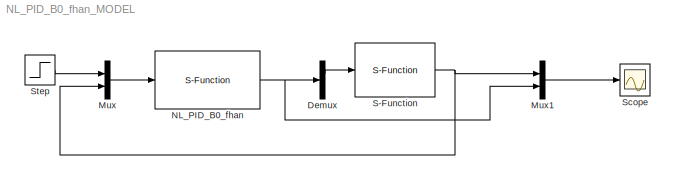
MODEL NL_PID_B0_fhan_MODEL
KIND model
BLOCK [Demux] Demux
  DisplayOption = bar
  Outputs = 2
  Ports = [1, 2]
  SID = 10
BLOCK [Mux] Mux
  DisplayOption = bar
  Inputs = 2
  Ports = [2, 1]
  SID = 5
BLOCK [Mux] Mux1
  DisplayOption = bar
  Inputs = 2
  Ports = [2, 1]
  SID = 9
BLOCK [S-Function] NL_PID_B0_fhan
  EnableBusSupport = off
  FunctionName = NL_PID_B0_fhan
  MaskCallbackString = |||||||
  MaskEnableString = on,on,on,on,on,on,on,on
  MaskIconFrame = on
  MaskIconOpaque = on
  MaskIconRotate = none
  MaskIconUnits = autoscale
  MaskPortRotate = default
  MaskPromptString = r0=|h0|r1=|h1=|h=|Bet0=|r2=|h2=
  MaskStyleString = edit,edit,edit,edit,edit,edit,edit,edit
  MaskToolTipString = on,on,on,on,on,on,on,on
  MaskTunableValueString = on,on,on,on,on,on,on,on
  MaskValueString = 0.5|0.01|30|0.01|0.01|500|20|0.08
  MaskVariables = r0=@1;h0=@2;r1=@3;h1=@4;h=@5;Bet0=@6;r2=@7;h2=@8;
  MaskVisibilityString = on,on,on,on,on,on,on,on
  Parameters = r0,h0,r1,h1,h,Bet0,r2,h2
  Ports = [1, 1]
  SID = 24
BLOCK [S-Function] S-Function
  EnableBusSupport = off
  FunctionName = Plant1
  Ports = [1, 1]
  SID = 2
BLOCK [Scope] Scope
  DataFormat = StructureWithTime
  Floating = off
  NumInputPorts = 1
  Ports = [1]
  SID = 4
  SampleTime = 0
  YMax = 1.25
  YMin = -2.75
BLOCK [Step] Step
  SID = 8
  SampleTime = 0
  Time = 0
LINE Demux:1 -> S-Function:1
LINE Mux1:1 -> Scope:1
LINE Mux:1 -> NL_PID_B0_fhan:1
NET NL_PID_B0_fhan:1 -> Demux:1, Mux1:2
NET S-Function:1 -> Mux1:1, Mux:2
LINE Step:1 -> Mux:1
note: NET lines group one-source signal fan-out (src -> all destinations, sorted); 1:1 wires keep LINE
